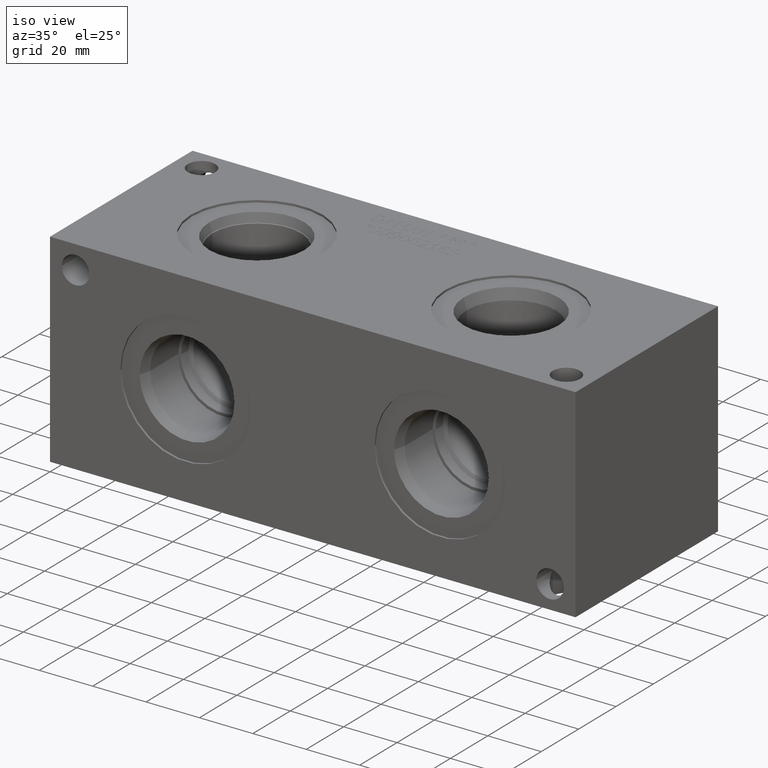
[diagram: clean part render]
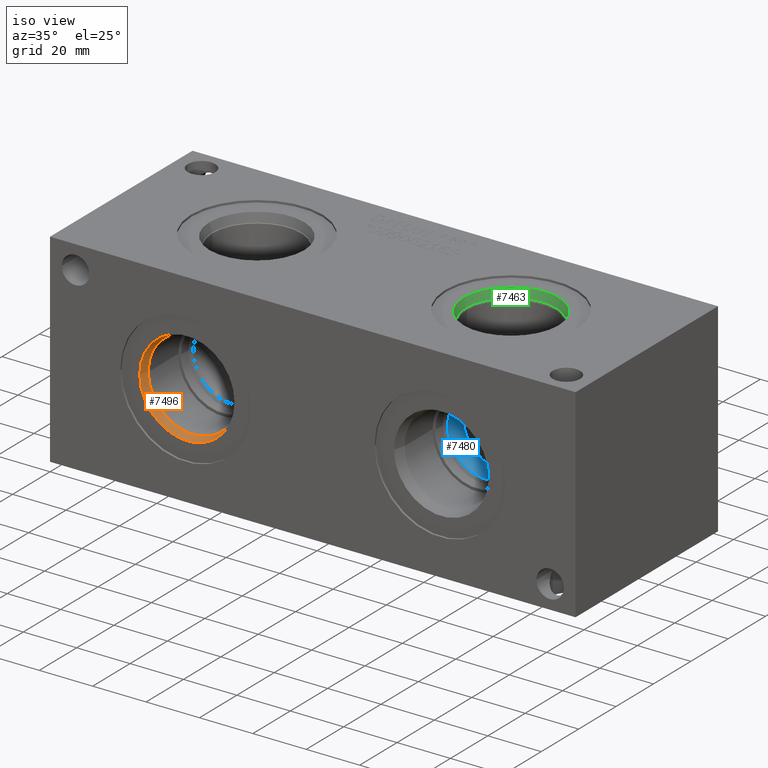
[diagram: same view with three faces highlighted in distinct colors, each labeled with its STEP entity id]
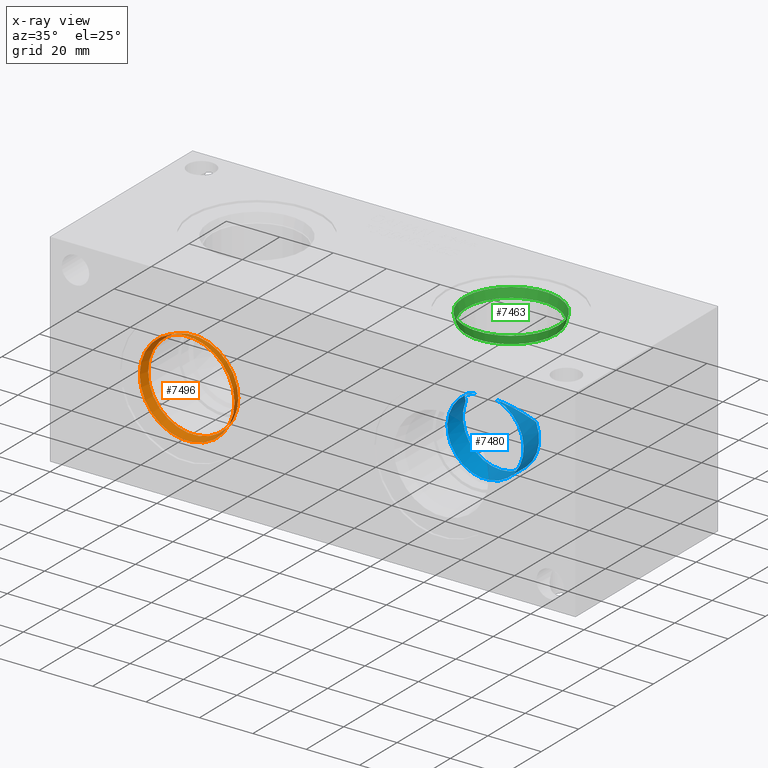
[diagram: x-ray of the same camera — body ghosted, the three highlighted faces saturated]
A machine part, iso view with three faces highlighted in distinct colors.
The next image is the same camera in x-ray (body ghosted, the three faces saturated) — at least one of them is partly hidden behind the body in this view.
Their STEP definitions:

[orange] entity #7496 — the highlighted conical surface has half-angle 15 deg.
#88=CONICAL_SURFACE('',#7867,8.8773,0.261799387799149);
#154=CIRCLE('',#7861,16.8783);
#158=CIRCLE('',#7868,17.7546);
#159=CIRCLE('',#7869,17.7546);
#955=FACE_OUTER_BOUND('',#1375,.T.);
#1375=EDGE_LOOP('',(#6482,#6483,#6484,#6485,#6486));
#2076=LINE('',#13021,#2760);
#2760=VECTOR('',#9253,8.8773);
#3441=VERTEX_POINT('',#13004);
#3445=VERTEX_POINT('',#13018);
#3446=VERTEX_POINT('',#13019);
#4466=EDGE_CURVE('',#3441,#3441,#154,.T.);
#4473=EDGE_CURVE('',#3445,#3446,#158,.T.);
#4474=EDGE_CURVE('',#3446,#3441,#2076,.T.);
#4475=EDGE_CURVE('',#3446,#3445,#159,.T.);
#6482=ORIENTED_EDGE('',*,*,#4473,.T.);
#6483=ORIENTED_EDGE('',*,*,#4474,.T.);
#6484=ORIENTED_EDGE('',*,*,#4466,.T.);
#6485=ORIENTED_EDGE('',*,*,#4474,.F.);
#6486=ORIENTED_EDGE('',*,*,#4475,.T.);
#7496=ADVANCED_FACE('',(#955),#88,.F.);
#7861=AXIS2_PLACEMENT_3D('',#13005,#9234,#9235);
#7867=AXIS2_PLACEMENT_3D('',#13017,#9249,#9250);
#7868=AXIS2_PLACEMENT_3D('',#13020,#9251,#9252);
#7869=AXIS2_PLACEMENT_3D('',#13022,#9254,#9255);
#9234=DIRECTION('center_axis',(0.,1.,0.));
#9235=DIRECTION('ref_axis',(1.,0.,0.));
#9249=DIRECTION('center_axis',(0.,-1.,0.));
#9250=DIRECTION('ref_axis',(1.,0.,0.));
#9251=DIRECTION('center_axis',(0.,-1.,0.));
#9252=DIRECTION('ref_axis',(1.,0.,0.));
#9253=DIRECTION('',(0.258819045102521,0.965925826289068,3.16961915143176E-17));
#9254=DIRECTION('center_axis',(0.,-1.,0.));
#9255=DIRECTION('ref_axis',(1.,0.,0.));
#13004=CARTESIAN_POINT('',(33.9217,4.0653261226726,38.1));
#13005=CARTESIAN_POINT('Origin',(50.8,4.0653261226726,38.1));
#13017=CARTESIAN_POINT('Origin',(50.8,33.9254646340312,38.1));
#13018=CARTESIAN_POINT('',(68.5546,0.79493,38.1));
#13019=CARTESIAN_POINT('',(33.0454,0.794929999999998,38.1));
#13020=CARTESIAN_POINT('Origin',(50.8,0.79493,38.1));
#13021=CARTESIAN_POINT('',(41.9227,33.9254646340312,38.1));
#13022=CARTESIAN_POINT('Origin',(50.8,0.79493,38.1));

[blue] entity #7480 — the highlighted cylindrical surface (partial cylindrical patch) has radius 14.2875 mm, axis along (0, -1, 0).
#14=ELLIPSE('',#7748,20.2055762724056,14.2875);
#15=ELLIPSE('',#7750,20.2055762724056,14.2875);
#51=CYLINDRICAL_SURFACE('',#7829,14.2875);
#126=CIRCLE('',#7800,14.2875);
#137=CIRCLE('',#7830,14.2875);
#939=FACE_OUTER_BOUND('',#1357,.T.);
#1357=EDGE_LOOP('',(#6403,#6404,#6405,#6406));
#3367=VERTEX_POINT('',#12650);
#3369=VERTEX_POINT('',#12658);
#3373=VERTEX_POINT('',#12694);
#3374=VERTEX_POINT('',#12696);
#4355=EDGE_CURVE('',#3373,#3367,#14,.T.);
#4357=EDGE_CURVE('',#3369,#3374,#15,.T.);
#4402=EDGE_CURVE('',#3369,#3367,#126,.T.);
#4435=EDGE_CURVE('',#3373,#3374,#137,.T.);
#6403=ORIENTED_EDGE('',*,*,#4355,.T.);
#6404=ORIENTED_EDGE('',*,*,#4402,.F.);
#6405=ORIENTED_EDGE('',*,*,#4357,.T.);
#6406=ORIENTED_EDGE('',*,*,#4435,.F.);
#7480=ADVANCED_FACE('',(#939),#51,.F.);
#7748=AXIS2_PLACEMENT_3D('',#12695,#8983,#8984);
#7750=AXIS2_PLACEMENT_3D('',#12698,#8987,#8988);
#7800=AXIS2_PLACEMENT_3D('',#12815,#9098,#9099);
#7829=AXIS2_PLACEMENT_3D('',#12899,#9162,#9163);
#7830=AXIS2_PLACEMENT_3D('',#12900,#9164,#9165);
#8983=DIRECTION('center_axis',(0.,0.707106781186548,0.707106781186548));
#8984=DIRECTION('ref_axis',(0.,0.707106781186548,-0.707106781186548));
#8987=DIRECTION('center_axis',(0.,0.707106781186548,0.707106781186548));
#8988=DIRECTION('ref_axis',(0.,0.707106781186548,-0.707106781186548));
#9098=DIRECTION('center_axis',(0.,-1.,0.));
#9099=DIRECTION('ref_axis',(1.,0.,0.));
#9162=DIRECTION('center_axis',(0.,-1.,0.));
#9163=DIRECTION('ref_axis',(9.49410759657493E-16,0.,-1.));
#9164=DIRECTION('center_axis',(0.,1.,0.));
#9165=DIRECTION('ref_axis',(1.,0.,0.));
#12650=CARTESIAN_POINT('',(159.255999726711,32.64709,43.55291));
#12658=CARTESIAN_POINT('',(132.844000273289,32.64709,43.55291));
#12694=CARTESIAN_POINT('',(150.098857475575,24.3981968561624,51.8018031438377));
#12695=CARTESIAN_POINT('Origin',(146.05,38.1,38.1));
#12696=CARTESIAN_POINT('',(142.001142524425,24.3981968561624,51.8018031438377));
#12698=CARTESIAN_POINT('Origin',(146.05,38.1,38.1));
#12815=CARTESIAN_POINT('Origin',(146.05,32.64709,38.1));
#12899=CARTESIAN_POINT('Origin',(146.05,16.323545,38.1));
#12900=CARTESIAN_POINT('Origin',(146.05,24.3981968561624,38.1));

[green] entity #7463 — the highlighted conical surface has half-angle 15 deg.
#74=CONICAL_SURFACE('',#7780,8.8773,0.261799387799149);
#118=CIRCLE('',#7779,16.8783);
#119=CIRCLE('',#7781,17.7546);
#120=CIRCLE('',#7782,17.7546);
#922=FACE_OUTER_BOUND('',#1339,.T.);
#1339=EDGE_LOOP('',(#6314,#6315,#6316,#6317,#6318));
#2055=LINE('',#12764,#2739);
#2739=VECTOR('',#9058,8.8773);
#3391=VERTEX_POINT('',#12757);
#3392=VERTEX_POINT('',#12761);
#3393=VERTEX_POINT('',#12762);
#4384=EDGE_CURVE('',#3391,#3391,#118,.T.);
#4386=EDGE_CURVE('',#3392,#3393,#119,.T.);
#4387=EDGE_CURVE('',#3393,#3391,#2055,.T.);
#4388=EDGE_CURVE('',#3393,#3392,#120,.T.);
#6314=ORIENTED_EDGE('',*,*,#4386,.T.);
#6315=ORIENTED_EDGE('',*,*,#4387,.T.);
#6316=ORIENTED_EDGE('',*,*,#4384,.T.);
#6317=ORIENTED_EDGE('',*,*,#4387,.F.);
#6318=ORIENTED_EDGE('',*,*,#4388,.T.);
#7463=ADVANCED_FACE('',(#922),#74,.F.);
#7779=AXIS2_PLACEMENT_3D('',#12758,#9051,#9052);
#7780=AXIS2_PLACEMENT_3D('',#12760,#9054,#9055);
#7781=AXIS2_PLACEMENT_3D('',#12763,#9056,#9057);
#7782=AXIS2_PLACEMENT_3D('',#12765,#9059,#9060);
#9051=DIRECTION('center_axis',(0.,0.,-1.));
#9052=DIRECTION('ref_axis',(1.,0.,0.));
#9054=DIRECTION('center_axis',(0.,0.,1.));
#9055=DIRECTION('ref_axis',(1.,0.,0.));
#9056=DIRECTION('center_axis',(0.,0.,1.));
#9057=DIRECTION('ref_axis',(1.,0.,0.));
#9058=DIRECTION('',(0.258819045102521,3.16961915143176E-17,-0.965925826289068));
#9059=DIRECTION('center_axis',(0.,0.,1.));
#9060=DIRECTION('ref_axis',(1.,0.,0.));
#12757=CARTESIAN_POINT('',(129.1717,38.1,72.1346738773274));
#12758=CARTESIAN_POINT('Origin',(146.05,38.1,72.1346738773274));
#12760=CARTESIAN_POINT('Origin',(146.05,38.1,42.2745353659688));
#12761=CARTESIAN_POINT('',(163.8046,38.1,75.40507));
#12762=CARTESIAN_POINT('',(128.2954,38.1,75.40507));
#12763=CARTESIAN_POINT('Origin',(146.05,38.1,75.40507));
#12764=CARTESIAN_POINT('',(137.1727,38.1,42.2745353659688));
#12765=CARTESIAN_POINT('Origin',(146.05,38.1,75.40507));